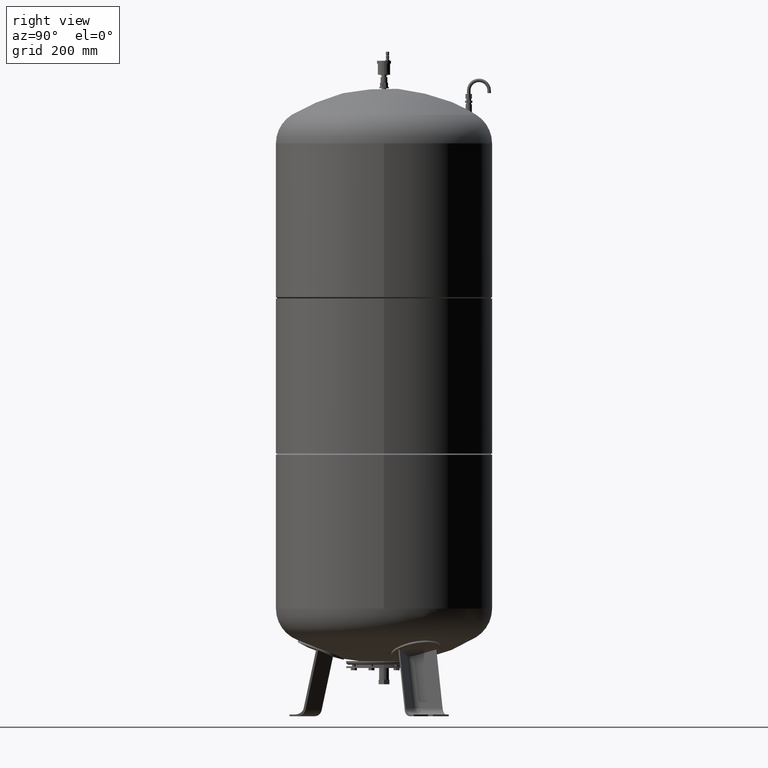
[diagram: clean part render]
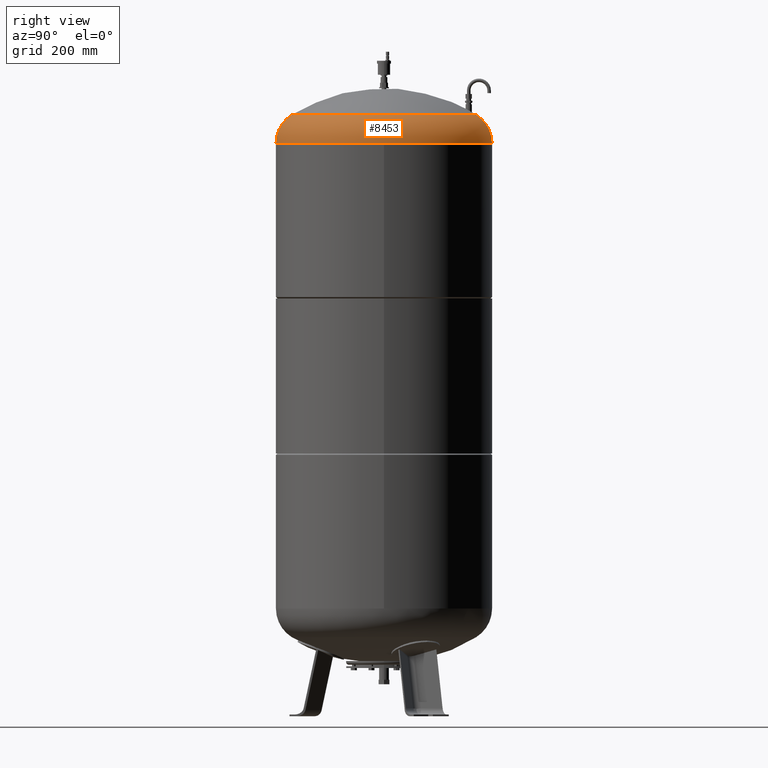
[diagram: same view with one face highlighted and labeled with its STEP entity id]
A machine part, right view. The second image highlights one B-rep face of the part: STEP entity #8453.
In plain terms, the highlighted toroidal blend (fillet) surface has major radius 254.5 mm and minor (blend) radius 115.5 mm.
Its self-contained STEP definition (entity closure, byte-faithful):
#8358=CARTESIAN_POINT('',(370.0,-3.468087E-014,1961.206120388130300));
#8359=VERTEX_POINT('',#8358);
#8383=CARTESIAN_POINT('',(2.218985E-014,369.999999999999940,1961.206120388130300));
#8384=VERTEX_POINT('',#8383);
#8392=CARTESIAN_POINT('',(-2.312058E-014,-3.468087E-014,1961.206120388130600));
#8393=DIRECTION('',(0.0,0.0,-1.0));
#8394=DIRECTION('',(1.0,0.0,0.0));
#8395=AXIS2_PLACEMENT_3D('',#8392,#8393,#8394);
#8396=CIRCLE('',#8395,370.0);
#8397=EDGE_CURVE('',#8384,#8359,#8396,.T.);
#8402=CARTESIAN_POINT('',(-2.312058E-014,-3.468087E-014,1961.206120388130300));
#8403=DIRECTION('',(-1.224647E-016,-1.836970E-016,-1.0));
#8404=DIRECTION('',(0.0,-1.0,0.0));
#8405=AXIS2_PLACEMENT_3D('',#8402,#8403,#8404);
#8406=TOROIDAL_SURFACE('',#8405,254.500000000000030,115.500000000000000);
#8407=CARTESIAN_POINT('',(-2.312058E-014,-370.000000000000060,1961.206120388130600));
#8408=VERTEX_POINT('',#8407);
#8409=CARTESIAN_POINT('',(-1.114251E-014,-315.931034482758610,2059.014494274920300));
#8410=VERTEX_POINT('',#8409);
#8411=CARTESIAN_POINT('',(-2.312058E-014,-254.500000000000060,1961.206120388130300));
#8412=DIRECTION('',(-1.0,0.0,0.0));
#8413=DIRECTION('',(0.0,-1.0,0.0));
#8414=AXIS2_PLACEMENT_3D('',#8411,#8412,#8413);
#8415=CIRCLE('',#8414,115.500000000000000);
#8416=EDGE_CURVE('',#8408,#8410,#8415,.T.);
#8417=ORIENTED_EDGE('',*,*,#8416,.F.);
#8418=CARTESIAN_POINT('',(-2.312058E-014,-3.468087E-014,1961.206120388130600));
#8419=DIRECTION('',(0.0,0.0,-1.0));
#8420=DIRECTION('',(1.0,0.0,0.0));
#8421=AXIS2_PLACEMENT_3D('',#8418,#8419,#8420);
#8422=CIRCLE('',#8421,370.0);
#8423=EDGE_CURVE('',#8359,#8408,#8422,.T.);
#8424=ORIENTED_EDGE('',*,*,#8423,.F.);
#8425=ORIENTED_EDGE('',*,*,#8397,.F.);
#8426=CARTESIAN_POINT('',(2.754660E-014,315.931034482758610,2059.014494274920300));
#8427=VERTEX_POINT('',#8426);
#8428=CARTESIAN_POINT('',(8.045650E-015,254.500000000000000,1961.206120388130300));
#8429=DIRECTION('',(1.0,0.0,0.0));
#8430=DIRECTION('',(0.0,1.0,0.0));
#8431=AXIS2_PLACEMENT_3D('',#8428,#8429,#8430);
#8432=CIRCLE('',#8431,115.500000000000000);
#8433=EDGE_CURVE('',#8384,#8427,#8432,.T.);
#8434=ORIENTED_EDGE('',*,*,#8433,.T.);
#8435=CARTESIAN_POINT('',(315.931034482758610,-1.671377E-014,2059.014494274920300));
#8436=VERTEX_POINT('',#8435);
#8437=CARTESIAN_POINT('',(-1.114251E-014,-1.671377E-014,2059.014494274920300));
#8438=DIRECTION('',(0.0,0.0,-1.0));
#8439=DIRECTION('',(1.0,0.0,0.0));
#8440=AXIS2_PLACEMENT_3D('',#8437,#8438,#8439);
#8441=CIRCLE('',#8440,315.931034482758610);
#8442=EDGE_CURVE('',#8427,#8436,#8441,.T.);
#8443=ORIENTED_EDGE('',*,*,#8442,.T.);
#8444=CARTESIAN_POINT('',(-1.114251E-014,-1.671377E-014,2059.014494274920300));
#8445=DIRECTION('',(0.0,0.0,-1.0));
#8446=DIRECTION('',(1.0,0.0,0.0));
#8447=AXIS2_PLACEMENT_3D('',#8444,#8445,#8446);
#8448=CIRCLE('',#8447,315.931034482758610);
#8449=EDGE_CURVE('',#8436,#8410,#8448,.T.);
#8450=ORIENTED_EDGE('',*,*,#8449,.T.);
#8451=EDGE_LOOP('',(#8417,#8424,#8425,#8434,#8443,#8450));
#8452=FACE_OUTER_BOUND('',#8451,.T.);
#8453=ADVANCED_FACE('',(#8452),#8406,.T.);